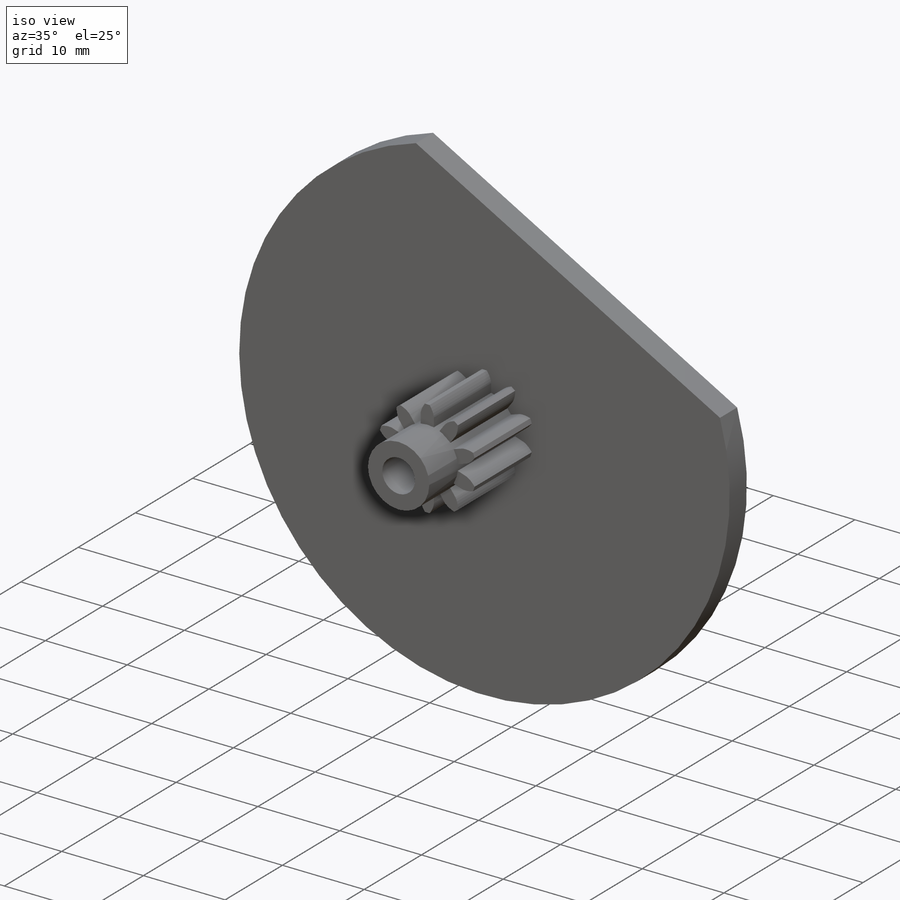
[diagram: iso view]
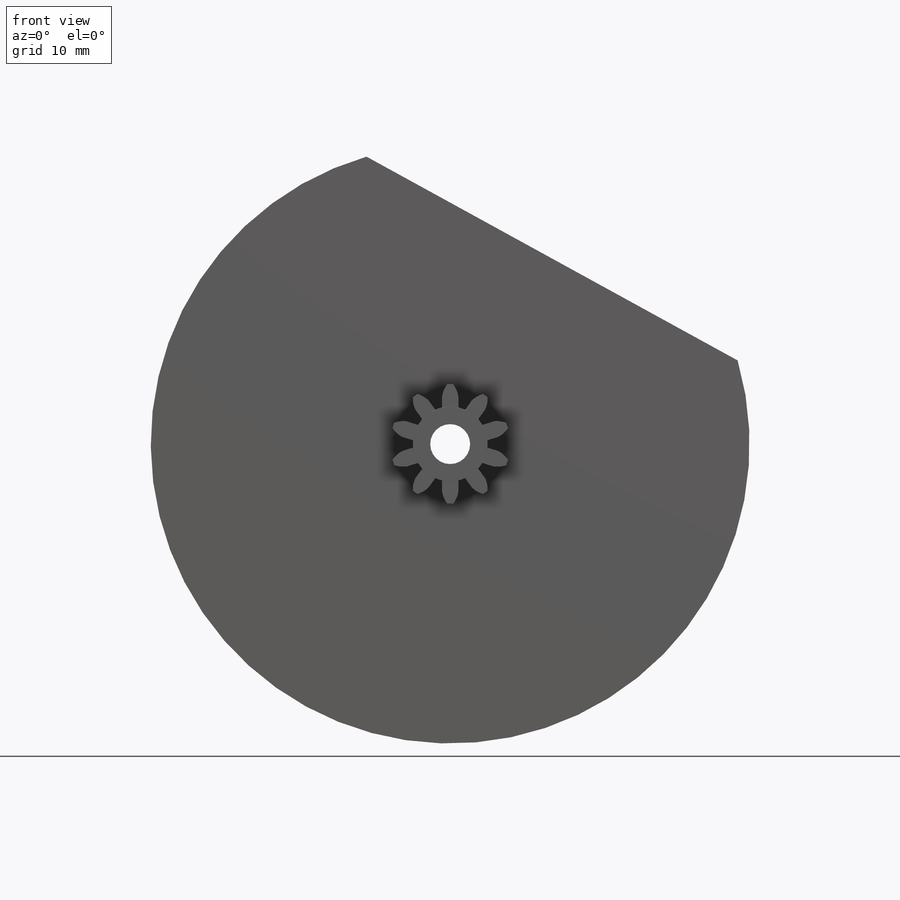
[diagram: front view]
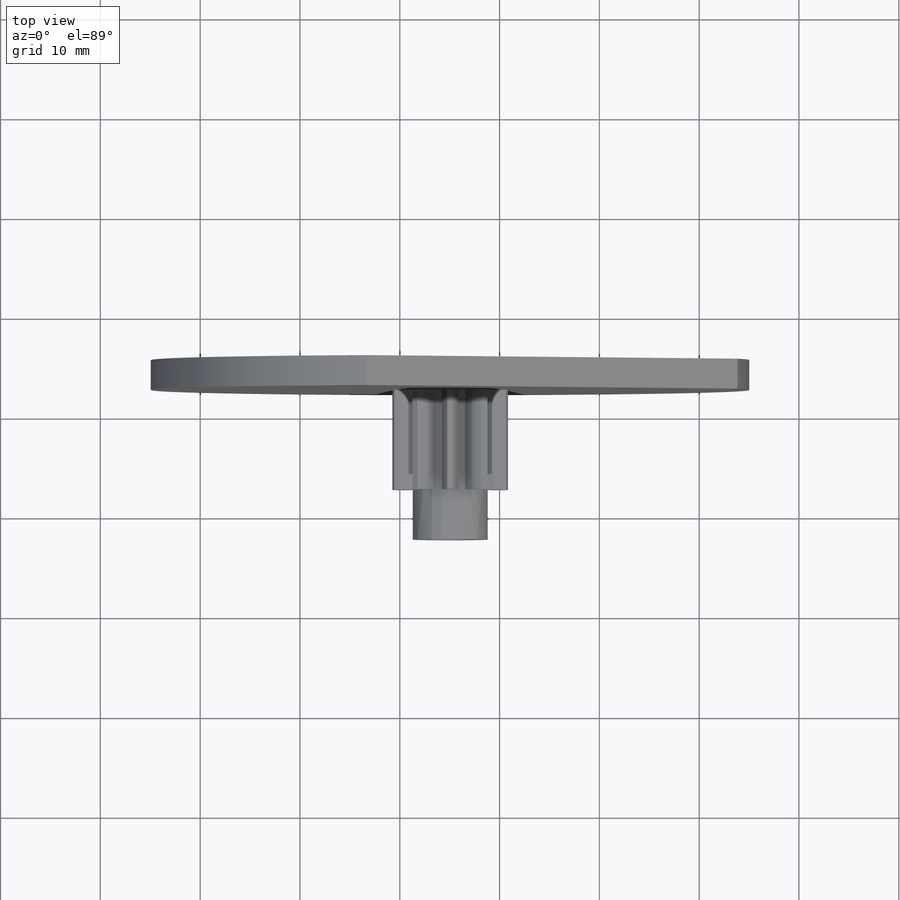
[diagram: top view]
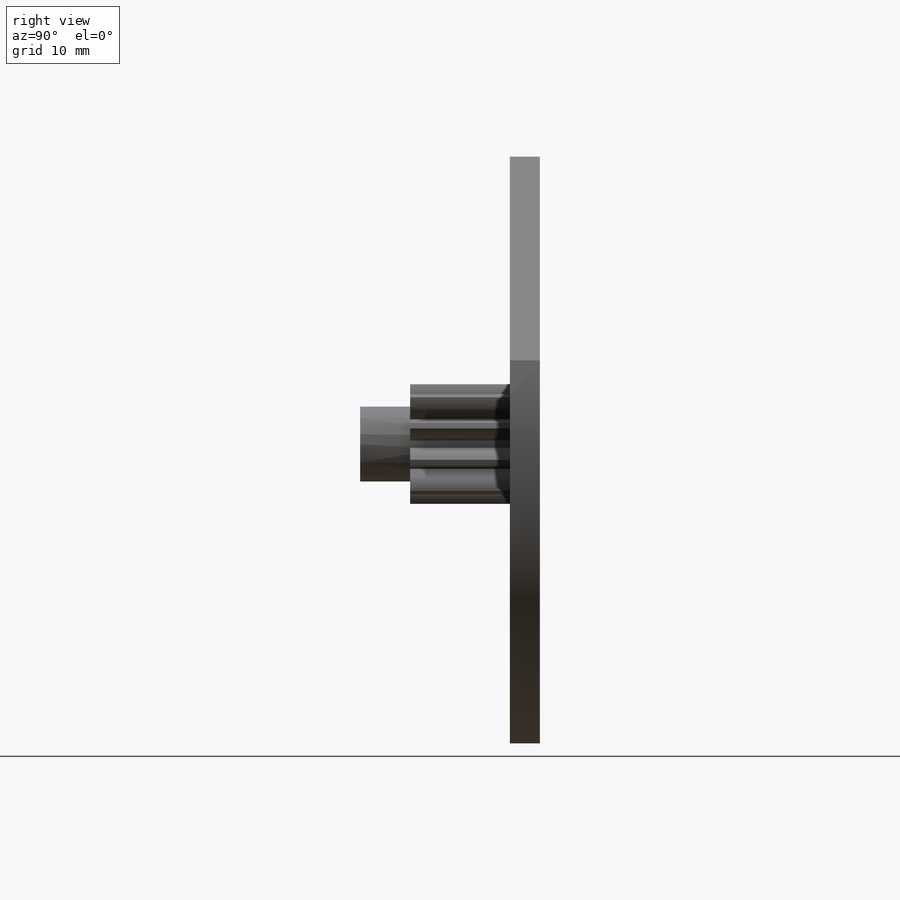
[diagram: right view]
SOLIDWORKS PART (.sldprt)
format: sldprt  version: not decoded by parser v0  size: 1,088,512 bytes
history: native  units: mm
features: sketch x3, extrude x2, material x1, plane x1, cut_extrude x1 + 1 further entry (+18 scaffold rows collapsed; 3 parser-record rows omitted)
feature tree (30):
  scaffold x18  (default folders/planes/origin — collapsed)
  material  "Matériau <non spécifié>"
  "engrenage_cd_m1_l10_z10_0_nf_0"
  parser-record x3  (decoder bookkeeping rows leaked as tree rows — omitted from the tree; the rows remain in map.json)
  sketch  "Esquisse1"
  extrude  "Boss.-Extru.1"  Depth=5mm
  plane  "Plan1"
  sketch  "Esquisse4"  dims[D1=30.0mm]
  extrude  "Boss.-Extru.3"  Depth=3mm flange_len_value=0 Associativity_IDs=0mm
  sketch  "Esquisse5"  dims[D1=1.5mm]
  cut_extrude  "Enlèv. mat.-Extru.1"  Depth=17mm Associativity_IDs=0mm flange_len_value=0
decode coverage: 5 of 6 modeling features carry decoded parameters; 1 rows unclassified (native names shown)
note: suppression state not decoded; provenance and decode notes live in map.json
